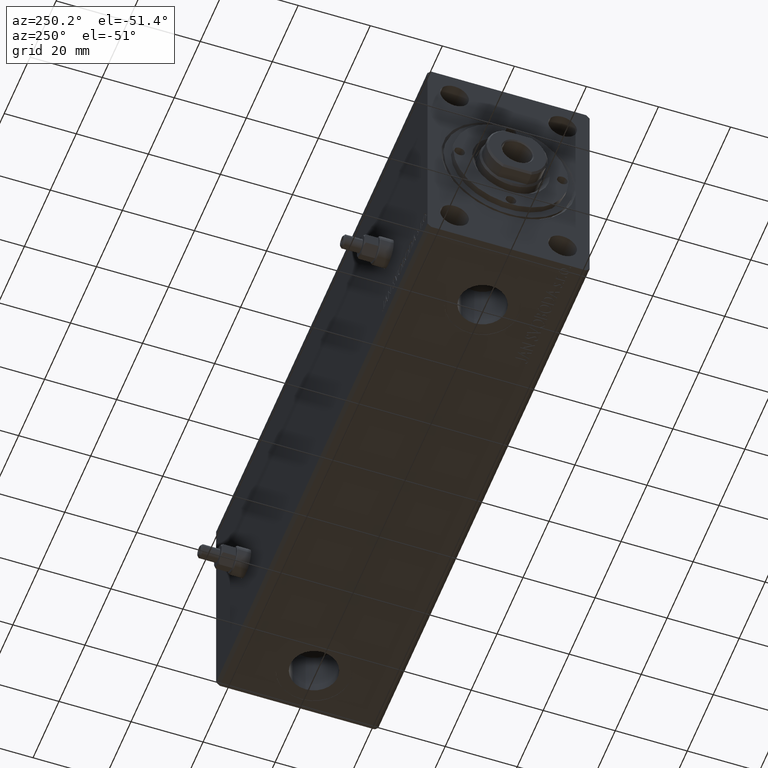
[diagram: clean part render]
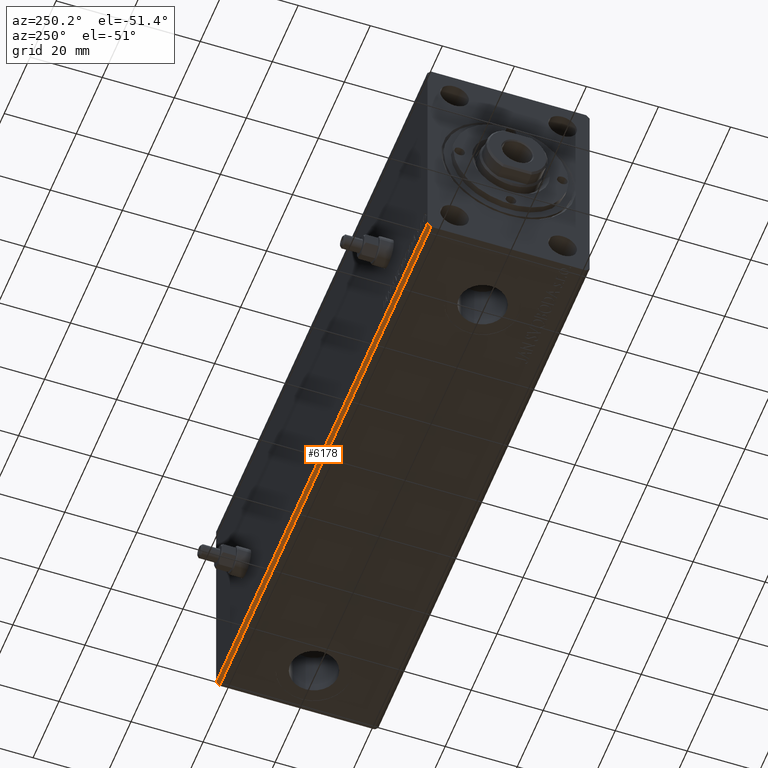
[diagram: same view with one face highlighted and labeled with its STEP entity id]
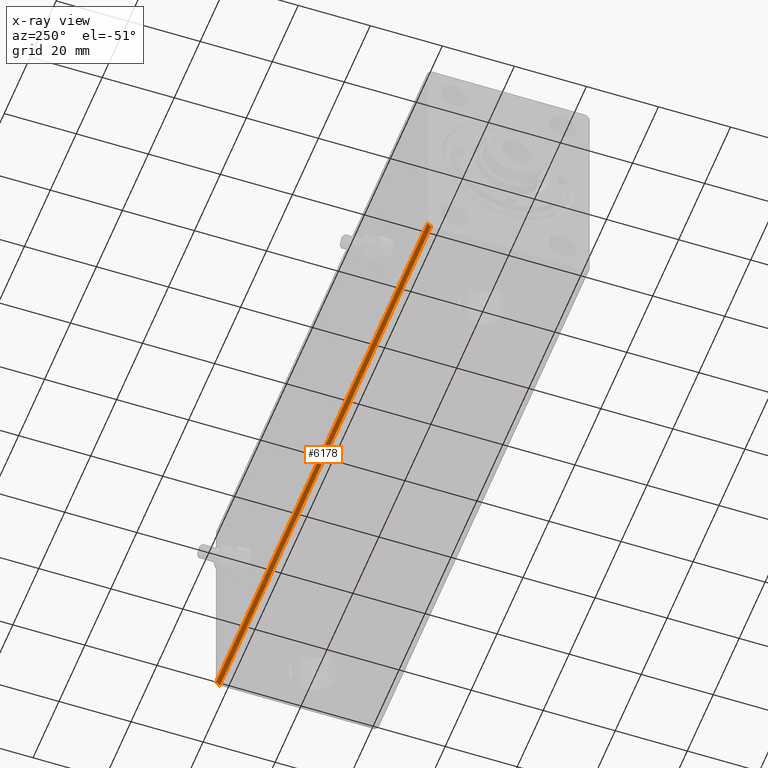
[diagram: x-ray of the same camera — body ghosted, the highlighted face saturated]
A machine part, auxiliary view. The second image highlights one B-rep face of the part: STEP entity #6178.
The next image is the same camera in x-ray: the body ghosted, the highlighted face saturated — about 0% of this face is hidden behind the body in this view.
In plain terms, the highlighted planar face has unit normal (0, -0.7071, 0.7071).
Its self-contained STEP definition (entity closure, byte-faithful):
#1985 = VECTOR ( 'NONE', #22691, 1000.000000000000000 ) ;
#2459 = ORIENTED_EDGE ( 'NONE', *, *, #27084, .F. ) ;
#5011 = CARTESIAN_POINT ( 'NONE',  ( 163.0000000000000000, 21.49999999999999645, -32.50000000000000000 ) ) ;
#5228 = DIRECTION ( 'NONE',  ( 0.000000000000000000, -0.7071067811865475727, 0.7071067811865475727 ) ) ;
#5448 = CARTESIAN_POINT ( 'NONE',  ( 0.000000000000000000, 22.49999999999999645, -31.50000000000000000 ) ) ;
#6178 = ADVANCED_FACE ( 'NONE', ( #36315 ), #22843, .F. ) ;
#7011 = AXIS2_PLACEMENT_3D ( 'NONE', #5011, #5228, #39522 ) ;
#8239 = VECTOR ( 'NONE', #13212, 1000.000000000000114 ) ;
#8408 = EDGE_CURVE ( 'NONE', #19275, #14167, #41284, .T. ) ;
#8980 = VECTOR ( 'NONE', #31615, 1000.000000000000000 ) ;
#9544 = CARTESIAN_POINT ( 'NONE',  ( 163.0000000000000000, 22.49999999999999645, -31.50000000000000000 ) ) ;
#10622 = LINE ( 'NONE', #35275, #8980 ) ;
#10662 = CARTESIAN_POINT ( 'NONE',  ( 163.0000000000000000, 21.49999999999999645, -32.50000000000000000 ) ) ;
#11337 = CARTESIAN_POINT ( 'NONE',  ( 0.000000000000000000, 21.49999999999999645, -32.50000000000000000 ) ) ;
#12625 = LINE ( 'NONE', #40034, #1985 ) ;
#13212 = DIRECTION ( 'NONE',  ( 0.000000000000000000, 0.7071067811865474617, 0.7071067811865474617 ) ) ;
#13425 = LINE ( 'NONE', #33743, #8239 ) ;
#13662 = CARTESIAN_POINT ( 'NONE',  ( 0.000000000000000000, 21.49999999999999645, -32.50000000000000000 ) ) ;
#14167 = VERTEX_POINT ( 'NONE', #5448 ) ;
#19275 = VERTEX_POINT ( 'NONE', #11337 ) ;
#22691 = DIRECTION ( 'NONE',  ( -1.000000000000000000, -0.000000000000000000, -0.000000000000000000 ) ) ;
#22843 = PLANE ( 'NONE',  #7011 ) ;
#26323 = ORIENTED_EDGE ( 'NONE', *, *, #8408, .T. ) ;
#27084 = EDGE_CURVE ( 'NONE', #37569, #45060, #13425, .T. ) ;
#28253 = EDGE_CURVE ( 'NONE', #37569, #19275, #10622, .T. ) ;
#30374 = EDGE_LOOP ( 'NONE', ( #26323, #35944, #2459, #37559 ) ) ;
#31615 = DIRECTION ( 'NONE',  ( -1.000000000000000000, -0.000000000000000000, -0.000000000000000000 ) ) ;
#33743 = CARTESIAN_POINT ( 'NONE',  ( 163.0000000000000000, 21.49999999999999645, -32.50000000000000000 ) ) ;
#34209 = DIRECTION ( 'NONE',  ( 0.000000000000000000, 0.7071067811865474617, 0.7071067811865474617 ) ) ;
#35275 = CARTESIAN_POINT ( 'NONE',  ( 163.0000000000000000, 21.49999999999999645, -32.50000000000000000 ) ) ;
#35909 = EDGE_CURVE ( 'NONE', #45060, #14167, #12625, .T. ) ;
#35944 = ORIENTED_EDGE ( 'NONE', *, *, #35909, .F. ) ;
#36315 = FACE_OUTER_BOUND ( 'NONE', #30374, .T. ) ;
#37559 = ORIENTED_EDGE ( 'NONE', *, *, #28253, .T. ) ;
#37569 = VERTEX_POINT ( 'NONE', #10662 ) ;
#38448 = VECTOR ( 'NONE', #34209, 1000.000000000000114 ) ;
#39522 = DIRECTION ( 'NONE',  ( 0.000000000000000000, -0.7071067811865474617, -0.7071067811865474617 ) ) ;
#40034 = CARTESIAN_POINT ( 'NONE',  ( 163.0000000000000000, 22.49999999999999645, -31.50000000000000000 ) ) ;
#41284 = LINE ( 'NONE', #13662, #38448 ) ;
#45060 = VERTEX_POINT ( 'NONE', #9544 ) ;